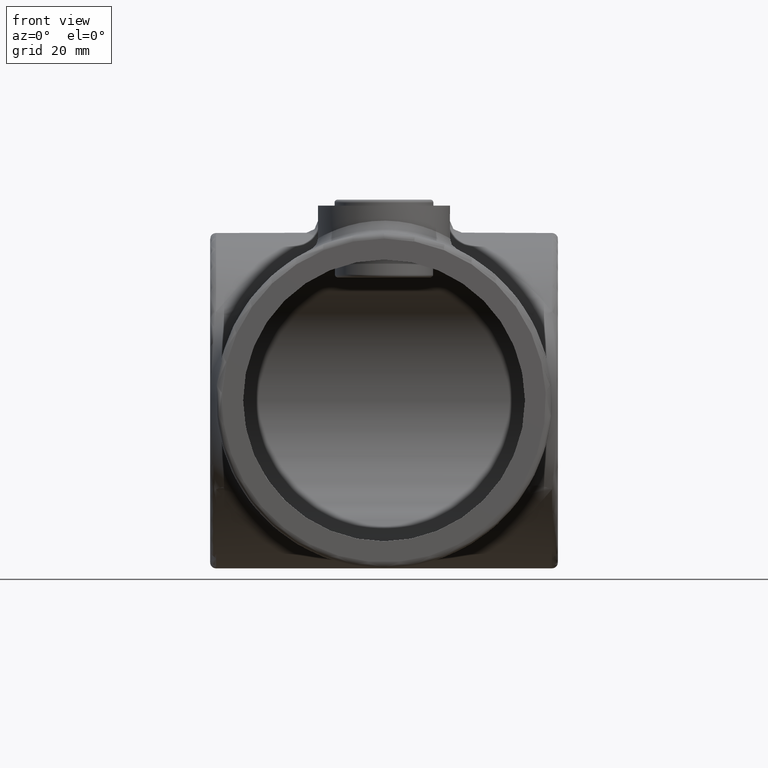
[diagram: clean part render]
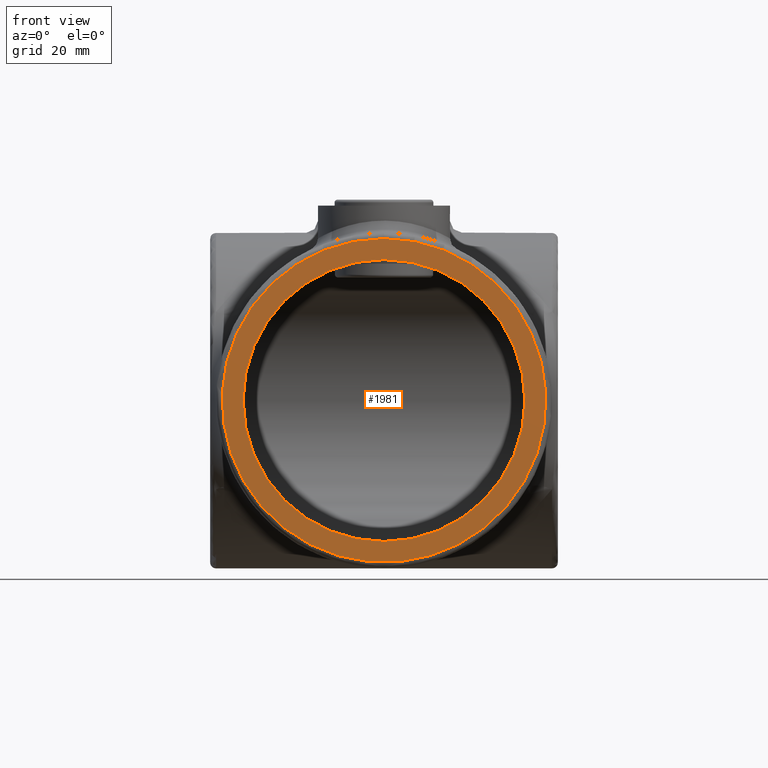
[diagram: same view with one face highlighted and labeled with its STEP entity id]
A machine part, front view. The second image highlights one B-rep face of the part: STEP entity #1981.
In plain terms, the highlighted planar face has unit normal (0, 1, 0).
Its self-contained STEP definition (entity closure, byte-faithful):
#91 = VERTEX_POINT ( 'NONE', #860 ) ;
#160 = ORIENTED_EDGE ( 'NONE', *, *, #2790, .T. ) ;
#477 = CARTESIAN_POINT ( 'NONE',  ( 0.000000000000000000, 0.000000000000000000, 0.000000000000000000 ) ) ;
#674 = DIRECTION ( 'NONE',  ( -0.000000000000000000, -1.000000000000000000, -0.000000000000000000 ) ) ;
#725 = AXIS2_PLACEMENT_3D ( 'NONE', #1001, #674, #2831 ) ;
#860 = CARTESIAN_POINT ( 'NONE',  ( 0.000000000000000000, 0.000000000000000000, 27.00000000000000000 ) ) ;
#1001 = CARTESIAN_POINT ( 'NONE',  ( 0.000000000000000000, 0.000000000000000000, 0.000000000000000000 ) ) ;
#1266 = EDGE_LOOP ( 'NONE', ( #160 ) ) ;
#1406 = DIRECTION ( 'NONE',  ( 0.000000000000000000, -0.000000000000000000, 1.000000000000000000 ) ) ;
#1821 = FACE_BOUND ( 'NONE', #2903, .T. ) ;
#1945 = DIRECTION ( 'NONE',  ( 0.000000000000000000, 1.000000000000000000, 0.000000000000000000 ) ) ;
#1981 = ADVANCED_FACE ( 'NONE', ( #3240, #1821 ), #2368, .F. ) ;
#1996 = CIRCLE ( 'NONE', #3738, 23.50000000000000000 ) ;
#2262 = ORIENTED_EDGE ( 'NONE', *, *, #2819, .T. ) ;
#2368 = PLANE ( 'NONE',  #3461 ) ;
#2690 = CARTESIAN_POINT ( 'NONE',  ( 0.000000000000000000, 0.000000000000000000, 23.50000000000000000 ) ) ;
#2790 = EDGE_CURVE ( 'NONE', #91, #91, #3090, .T. ) ;
#2819 = EDGE_CURVE ( 'NONE', #3731, #3731, #1996, .T. ) ;
#2831 = DIRECTION ( 'NONE',  ( 0.000000000000000000, 0.000000000000000000, 1.000000000000000000 ) ) ;
#2903 = EDGE_LOOP ( 'NONE', ( #2262 ) ) ;
#3090 = CIRCLE ( 'NONE', #725, 27.00000000000000000 ) ;
#3184 = CARTESIAN_POINT ( 'NONE',  ( 0.000000000000000000, 0.000000000000000000, 0.000000000000000000 ) ) ;
#3240 = FACE_OUTER_BOUND ( 'NONE', #1266, .T. ) ;
#3461 = AXIS2_PLACEMENT_3D ( 'NONE', #477, #3645, #1406 ) ;
#3645 = DIRECTION ( 'NONE',  ( 0.000000000000000000, 1.000000000000000000, 0.000000000000000000 ) ) ;
#3731 = VERTEX_POINT ( 'NONE', #2690 ) ;
#3738 = AXIS2_PLACEMENT_3D ( 'NONE', #3184, #1945, #3880 ) ;
#3880 = DIRECTION ( 'NONE',  ( 0.000000000000000000, 0.000000000000000000, 1.000000000000000000 ) ) ;